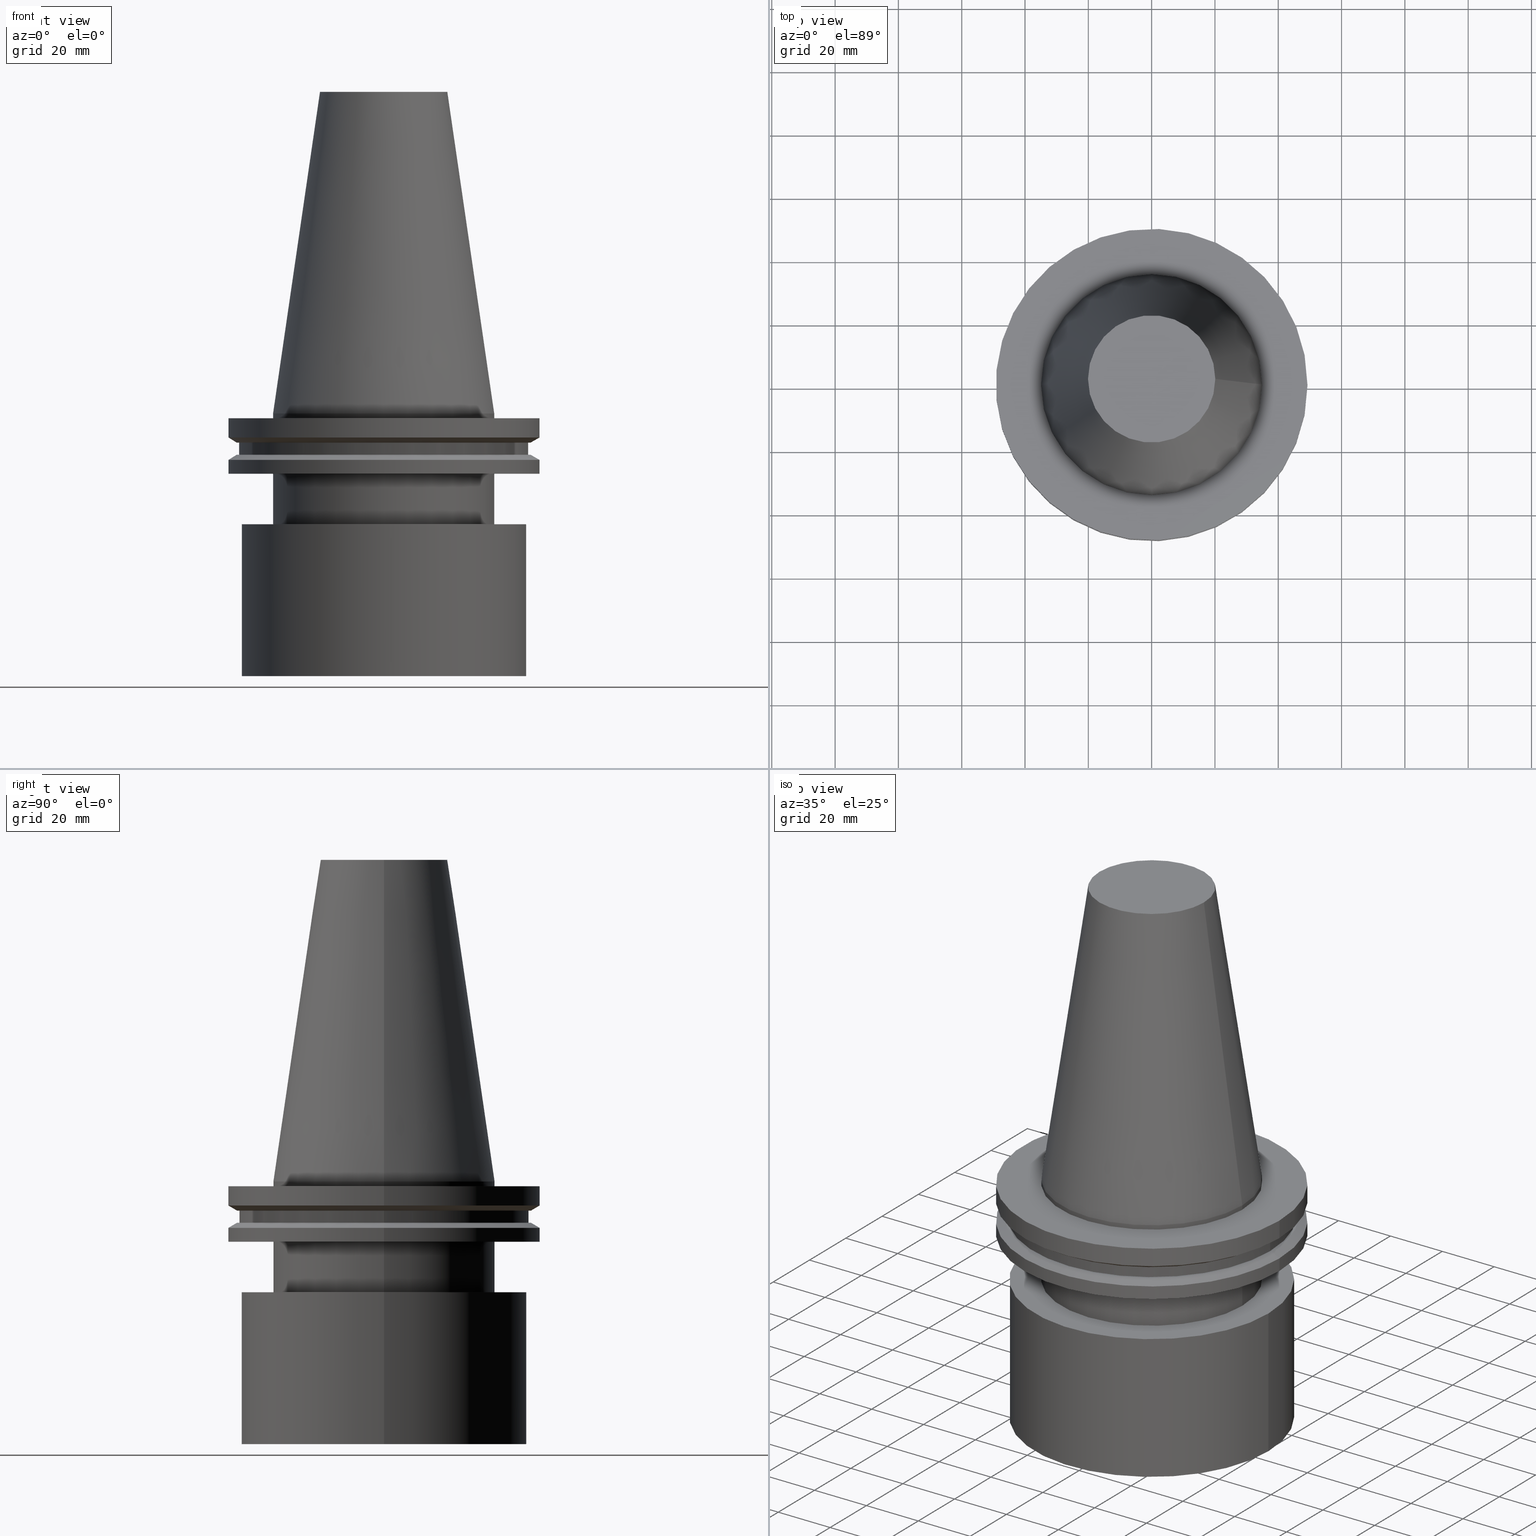
[diagram: canonical four-view strip — front | top / right | iso, engineering-drawing reading convention]
A machine part, canonical four-view strip (front | top / right | iso — engineering-drawing reading convention). The complete STEP part file that produces these views, byte-faithful:
ISO-10303-21;
HEADER;
FILE_DESCRIPTION (( 'STEP AP203' ),
    '1' );
FILE_NAME ('11.368.674.stp',
    '2022-03-09T15:23:10',
    ( '' ),
    ( '' ),
    'SwSTEP 2.0',
    'SolidWorks 2021',
    '' );
FILE_SCHEMA (( 'CONFIG_CONTROL_DESIGN' ));
ENDSEC;

DATA;
#1 = EDGE_CURVE ( 'NONE', #272, #272, #247, .T. ) ;
#2 = ORIENTED_EDGE ( 'NONE', *, *, #43, .F. ) ;
#3 = CARTESIAN_POINT ( 'NONE',  ( 0.000000000000000000, 0.000000000000000000, -14.65761014474876944 ) ) ;
#4 = ORIENTED_EDGE ( 'NONE', *, *, #393, .T. ) ;
#5 = CC_DESIGN_PERSON_AND_ORGANIZATION_ASSIGNMENT ( #252, #189, ( #390 ) ) ;
#6 = FACE_OUTER_BOUND ( 'NONE', #101, .T. ) ;
#7 = CIRCLE ( 'NONE', #134, 49.21500000000000341 ) ;
#8 = EDGE_LOOP ( 'NONE', ( #172 ) ) ;
#9 = DIRECTION ( 'NONE',  ( 1.000000000000000000, 0.000000000000000000, 0.000000000000000000 ) ) ;
#10 = ADVANCED_FACE ( 'NONE', ( #154, #388 ), #146, .T. ) ;
#11 = EDGE_LOOP ( 'NONE', ( #204 ) ) ;
#12 = DIRECTION ( 'NONE',  ( -0.000000000000000000, -0.000000000000000000, 1.000000000000000000 ) ) ;
#13 = ORIENTED_EDGE ( 'NONE', *, *, #301, .F. ) ;
#14 = DIRECTION ( 'NONE',  ( 1.000000000000000000, 0.000000000000000000, 0.000000000000000000 ) ) ;
#15 = AXIS2_PLACEMENT_3D ( 'NONE', #168, #111, #142 ) ;
#16 = FACE_OUTER_BOUND ( 'NONE', #371, .T. ) ;
#17 = DIRECTION ( 'NONE',  ( 1.000000000000000000, 0.000000000000000000, 0.000000000000000000 ) ) ;
#18 = DIRECTION ( 'NONE',  ( 1.000000000000000000, 0.000000000000000000, 0.000000000000000000 ) ) ;
#19 = AXIS2_PLACEMENT_3D ( 'NONE', #239, #87, #214 ) ;
#20 = VERTEX_POINT ( 'NONE', #22 ) ;
#21 = DIRECTION ( 'NONE',  ( -0.000000000000000000, -0.000000000000000000, 1.000000000000000000 ) ) ;
#22 = CARTESIAN_POINT ( 'NONE',  ( 49.21500000000000341, 0.000000000000000000, -7.602389855251287187 ) ) ;
#23 = AXIS2_PLACEMENT_3D ( 'NONE', #266, #132, #315 ) ;
#24 = DIRECTION ( 'NONE',  ( 1.000000000000000000, 0.000000000000000000, 0.000000000000000000 ) ) ;
#25 = VERTEX_POINT ( 'NONE', #240 ) ;
#26 = EDGE_LOOP ( 'NONE', ( #317 ) ) ;
#27 =( NAMED_UNIT ( * ) PLANE_ANGLE_UNIT ( ) SI_UNIT ( $, .RADIAN. ) );
#28 = DIRECTION ( 'NONE',  ( 0.000000000000000000, 0.000000000000000000, -1.000000000000000000 ) ) ;
#29 = SHAPE_DEFINITION_REPRESENTATION ( #158, #367 ) ;
#30 = PRODUCT ( '11.368.674', '11.368.674', '', ( #91 ) ) ;
#31 = CALENDAR_DATE ( 2022, 9, 3 ) ;
#32 = AXIS2_PLACEMENT_3D ( 'NONE', #385, #292, #124 ) ;
#33 = APPROVAL_DATE_TIME ( #305, #64 ) ;
#34 = PERSON_AND_ORGANIZATION ( #336, #273 ) ;
#35 = ORIENTED_EDGE ( 'NONE', *, *, #224, .T. ) ;
#36 = DIRECTION ( 'NONE',  ( 1.000000000000000000, 0.000000000000000000, 0.000000000000000000 ) ) ;
#37 = CC_DESIGN_DATE_AND_TIME_ASSIGNMENT ( #223, #157, ( #390 ) ) ;
#38 = ORIENTED_EDGE ( 'NONE', *, *, #155, .F. ) ;
#39 = DIRECTION ( 'NONE',  ( -0.000000000000000000, -0.000000000000000000, 1.000000000000000000 ) ) ;
#40 = ORIENTED_EDGE ( 'NONE', *, *, #393, .F. ) ;
#41 = PLANE ( 'NONE',  #120 ) ;
#42 = ORIENTED_EDGE ( 'NONE', *, *, #261, .F. ) ;
#43 = EDGE_CURVE ( 'NONE', #352, #352, #88, .T. ) ;
#44 = DIRECTION ( 'NONE',  ( 1.000000000000000000, 0.000000000000000000, 0.000000000000000000 ) ) ;
#45 = EDGE_LOOP ( 'NONE', ( #179 ) ) ;
#46 = FACE_OUTER_BOUND ( 'NONE', #350, .T. ) ;
#47 = ORIENTED_EDGE ( 'NONE', *, *, #290, .F. ) ;
#48 = CARTESIAN_POINT ( 'NONE',  ( 49.21499999999999631, 0.000000000000000000, -1.499999999999987566 ) ) ;
#49 = CARTESIAN_POINT ( 'NONE',  ( 0.000000000000000000, 0.000000000000000000, -19.04999999999999716 ) ) ;
#50 = CARTESIAN_POINT ( 'NONE',  ( 20.10819343178871321, 0.000000000000000000, 101.5999999999999801 ) ) ;
#51 = FACE_OUTER_BOUND ( 'NONE', #169, .T. ) ;
#52 = AXIS2_PLACEMENT_3D ( 'NONE', #126, #360, #93 ) ;
#53 = CARTESIAN_POINT ( 'NONE',  ( 0.000000000000000000, 0.000000000000000000, 0.000000000000000000 ) ) ;
#54 = DIRECTION ( 'NONE',  ( 1.000000000000000000, 0.000000000000000000, 0.000000000000000000 ) ) ;
#55 = VERTEX_POINT ( 'NONE', #148 ) ;
#56 = DIRECTION ( 'NONE',  ( 0.000000000000000000, -0.000000000000000000, 1.000000000000000000 ) ) ;
#57 = CARTESIAN_POINT ( 'NONE',  ( 45.00000000000000000, 0.000000000000000000, -83.00000000000001421 ) ) ;
#58 = EDGE_CURVE ( 'NONE', #270, #270, #394, .T. ) ;
#59 = DATE_AND_TIME ( #391, #246 ) ;
#60 = EDGE_CURVE ( 'NONE', #303, #303, #159, .T. ) ;
#61 = AXIS2_PLACEMENT_3D ( 'NONE', #378, #234, #299 ) ;
#62 = APPROVAL_ROLE ( '' ) ;
#63 = PERSON_AND_ORGANIZATION ( #336, #273 ) ;
#64 = APPROVAL ( #236, 'UNSPECIFIED' ) ;
#65 = COORDINATED_UNIVERSAL_TIME_OFFSET ( 6, 0, .BEHIND. ) ;
#66 = EDGE_CURVE ( 'NONE', #185, #185, #201, .T. ) ;
#67 = CC_DESIGN_APPROVAL ( #318, ( #316 ) ) ;
#68 = FACE_OUTER_BOUND ( 'NONE', #115, .T. ) ;
#69 = EDGE_LOOP ( 'NONE', ( #198 ) ) ;
#70 = AXIS2_PLACEMENT_3D ( 'NONE', #116, #39, #44 ) ;
#71 = DIRECTION ( 'NONE',  ( -0.000000000000000000, -0.000000000000000000, 1.000000000000000000 ) ) ;
#72 = CIRCLE ( 'NONE', #281, 34.92499999999999716 ) ;
#73 = ADVANCED_FACE ( 'NONE', ( #16 ), #379, .F. ) ;
#74 = ORIENTED_EDGE ( 'NONE', *, *, #66, .F. ) ;
#75 = FACE_OUTER_BOUND ( 'NONE', #11, .T. ) ;
#76 = EDGE_LOOP ( 'NONE', ( #368 ) ) ;
#77 = FACE_BOUND ( 'NONE', #377, .T. ) ;
#78 = EDGE_LOOP ( 'NONE', ( #74 ) ) ;
#79 = DIRECTION ( 'NONE',  ( -1.000000000000000000, 0.000000000000000000, -0.000000000000000000 ) ) ;
#80 = ORIENTED_EDGE ( 'NONE', *, *, #1, .F. ) ;
#81 = PERSON_AND_ORGANIZATION ( #336, #273 ) ;
#82 = EDGE_CURVE ( 'NONE', #123, #123, #260, .T. ) ;
#83 = DIRECTION ( 'NONE',  ( -0.000000000000000000, -0.000000000000000000, 1.000000000000000000 ) ) ;
#84 = CARTESIAN_POINT ( 'NONE',  ( 46.43919780457007818, 0.000000000000000000, -9.204999999999991189 ) ) ;
#85 = DIRECTION ( 'NONE',  ( -0.000000000000000000, -0.000000000000000000, 1.000000000000000000 ) ) ;
#86 = VERTEX_POINT ( 'NONE', #48 ) ;
#87 = DIRECTION ( 'NONE',  ( -0.000000000000000000, -0.000000000000000000, 1.000000000000000000 ) ) ;
#88 = CIRCLE ( 'NONE', #344, 34.92499999999999716 ) ;
#89 = VERTEX_POINT ( 'NONE', #50 ) ;
#90 = EDGE_LOOP ( 'NONE', ( #80 ) ) ;
#91 = MECHANICAL_CONTEXT ( 'NONE', #100, 'mechanical' ) ;
#92 =( GEOMETRIC_REPRESENTATION_CONTEXT ( 3 ) GLOBAL_UNCERTAINTY_ASSIGNED_CONTEXT ( ( #97 ) ) GLOBAL_UNIT_ASSIGNED_CONTEXT ( ( #150, #27, #119 ) ) REPRESENTATION_CONTEXT ( 'NONE', 'WORKASPACE' ) );
#93 = DIRECTION ( 'NONE',  ( 1.000000000000000000, 0.000000000000000000, 0.000000000000000000 ) ) ;
#94 = DESIGN_CONTEXT ( 'detailed design', #110, 'design' ) ;
#95 = COORDINATED_UNIVERSAL_TIME_OFFSET ( 6, 0, .BEHIND. ) ;
#96 = AXIS2_PLACEMENT_3D ( 'NONE', #3, #12, #345 ) ;
#97 = UNCERTAINTY_MEASURE_WITH_UNIT (LENGTH_MEASURE( 1.000000000000000082E-05 ), #150, 'distance_accuracy_value', 'NONE');
#98 = LOCAL_TIME ( 9, 23, 10.00000000000000000, #245 ) ;
#99 = DATE_AND_TIME ( #339, #309 ) ;
#100 = APPLICATION_CONTEXT ( 'configuration controlled 3d designs of mechanical parts and assemblies' ) ;
#101 = EDGE_LOOP ( 'NONE', ( #284 ) ) ;
#102 = AXIS2_PLACEMENT_3D ( 'NONE', #372, #319, #289 ) ;
#103 = FACE_BOUND ( 'NONE', #133, .T. ) ;
#104 = ORIENTED_EDGE ( 'NONE', *, *, #43, .T. ) ;
#105 = CIRCLE ( 'NONE', #166, 45.00000000000000000 ) ;
#106 = FACE_OUTER_BOUND ( 'NONE', #26, .T. ) ;
#107 = EDGE_CURVE ( 'NONE', #25, #25, #72, .T. ) ;
#108 = AXIS2_PLACEMENT_3D ( 'NONE', #323, #269, #117 ) ;
#109 = EDGE_LOOP ( 'NONE', ( #2 ) ) ;
#110 = APPLICATION_CONTEXT ( 'configuration controlled 3d designs of mechanical parts and assemblies' ) ;
#111 = DIRECTION ( 'NONE',  ( 0.000000000000000000, -0.000000000000000000, 1.000000000000000000 ) ) ;
#112 = CC_DESIGN_PERSON_AND_ORGANIZATION_ASSIGNMENT ( #34, #191, ( #316 ) ) ;
#113 = EDGE_LOOP ( 'NONE', ( #282 ) ) ;
#114 = CARTESIAN_POINT ( 'NONE',  ( 0.000000000000000000, 0.000000000000000000, -13.05499999999999794 ) ) ;
#115 = EDGE_LOOP ( 'NONE', ( #314 ) ) ;
#116 = CARTESIAN_POINT ( 'NONE',  ( 0.000000000000000000, 0.000000000000000000, 101.5999999999999943 ) ) ;
#117 = DIRECTION ( 'NONE',  ( -1.000000000000000000, 0.000000000000000000, -0.000000000000000000 ) ) ;
#118 = CYLINDRICAL_SURFACE ( 'NONE', #278, 45.64500000000000313 ) ;
#119 =( NAMED_UNIT ( * ) SI_UNIT ( $, .STERADIAN. ) SOLID_ANGLE_UNIT ( ) );
#120 = AXIS2_PLACEMENT_3D ( 'NONE', #140, #171, #227 ) ;
#121 = DIRECTION ( 'NONE',  ( 1.000000000000000000, 0.000000000000000000, 0.000000000000000000 ) ) ;
#122 = DIRECTION ( 'NONE',  ( 1.000000000000000000, 0.000000000000000000, 0.000000000000000000 ) ) ;
#123 = VERTEX_POINT ( 'NONE', #332 ) ;
#124 = DIRECTION ( 'NONE',  ( 1.000000000000000000, 0.000000000000000000, 0.000000000000000000 ) ) ;
#125 = APPROVAL_DATE_TIME ( #366, #308 ) ;
#126 = CARTESIAN_POINT ( 'NONE',  ( 0.000000000000000000, 0.000000000000000000, -9.204999999999991189 ) ) ;
#127 = AXIS2_PLACEMENT_3D ( 'NONE', #351, #83, #271 ) ;
#128 = PERSON_AND_ORGANIZATION_ROLE ( 'creator' ) ;
#129 = CLOSED_SHELL ( 'NONE', ( #249, #268, #216, #331, #196, #186, #147, #151, #192, #183, #231, #322, #180, #387, #10, #73 ) ) ;
#130 = PERSON_AND_ORGANIZATION ( #336, #273 ) ;
#131 = ORIENTED_EDGE ( 'NONE', *, *, #66, .T. ) ;
#132 = DIRECTION ( 'NONE',  ( -0.000000000000000000, -0.000000000000000000, 1.000000000000000000 ) ) ;
#133 = EDGE_LOOP ( 'NONE', ( #346 ) ) ;
#134 = AXIS2_PLACEMENT_3D ( 'NONE', #283, #203, #263 ) ;
#135 = FACE_OUTER_BOUND ( 'NONE', #141, .T. ) ;
#136 = EDGE_LOOP ( 'NONE', ( #320 ) ) ;
#137 = CARTESIAN_POINT ( 'NONE',  ( 0.000000000000000000, 49.21499999999999631, -1.499999999999992895 ) ) ;
#138 = CIRCLE ( 'NONE', #96, 49.21499999999998920 ) ;
#139 = EDGE_LOOP ( 'NONE', ( #254 ) ) ;
#140 = CARTESIAN_POINT ( 'NONE',  ( 0.000000000000000000, 20.10819343178871321, 101.5999999999999943 ) ) ;
#141 = EDGE_LOOP ( 'NONE', ( #4 ) ) ;
#142 = DIRECTION ( 'NONE',  ( 1.000000000000000000, 0.000000000000000000, 0.000000000000000000 ) ) ;
#143 = CARTESIAN_POINT ( 'NONE',  ( 0.000000000000000000, 0.000000000000000000, -35.00000000000000000 ) ) ;
#144 = CARTESIAN_POINT ( 'NONE',  ( 49.21499999999998920, 0.000000000000000000, -14.65761014474876944 ) ) ;
#145 = AXIS2_PLACEMENT_3D ( 'NONE', #244, #21, #212 ) ;
#146 = CYLINDRICAL_SURFACE ( 'NONE', #392, 45.00000000000000000 ) ;
#147 = ADVANCED_FACE ( 'NONE', ( #184, #267 ), #381, .F. ) ;
#148 = CARTESIAN_POINT ( 'NONE',  ( 34.92499999999999005, 0.000000000000000000, 0.000000000000000000 ) ) ;
#149 = CARTESIAN_POINT ( 'NONE',  ( 0.000000000000000000, 0.000000000000000000, 101.5999999999999943 ) ) ;
#150 =( LENGTH_UNIT ( ) NAMED_UNIT ( * ) SI_UNIT ( .MILLI., .METRE. ) );
#151 = ADVANCED_FACE ( 'NONE', ( #175, #242 ), #118, .T. ) ;
#152 = APPROVAL_PERSON_ORGANIZATION ( #306, #308, #193 ) ;
#153 = DIRECTION ( 'NONE',  ( -0.000000000000000000, -0.000000000000000000, 1.000000000000000000 ) ) ;
#154 = FACE_OUTER_BOUND ( 'NONE', #262, .T. ) ;
#155 = EDGE_CURVE ( 'NONE', #380, #380, #105, .T. ) ;
#156 = DIRECTION ( 'NONE',  ( -1.000000000000000000, 0.000000000000000000, 0.000000000000000000 ) ) ;
#157 = DATE_TIME_ROLE ( 'classification_date' ) ;
#158 = PRODUCT_DEFINITION_SHAPE ( 'NONE', 'NONE',  #241 ) ;
#159 = CIRCLE ( 'NONE', #226, 45.00000000000000000 ) ;
#160 = CALENDAR_DATE ( 2022, 9, 3 ) ;
#161 = AXIS2_PLACEMENT_3D ( 'NONE', #257, #374, #14 ) ;
#162 = PERSON_AND_ORGANIZATION ( #336, #273 ) ;
#163 = EDGE_CURVE ( 'NONE', #86, #86, #297, .T. ) ;
#164 = EDGE_LOOP ( 'NONE', ( #104 ) ) ;
#165 = CYLINDRICAL_SURFACE ( 'NONE', #70, 49.21499999999999631 ) ;
#166 = AXIS2_PLACEMENT_3D ( 'NONE', #237, #353, #328 ) ;
#167 = ORIENTED_EDGE ( 'NONE', *, *, #253, .F. ) ;
#168 = CARTESIAN_POINT ( 'NONE',  ( 0.000000000000000000, 49.21499999999998920, -19.04999999999999716 ) ) ;
#169 = EDGE_LOOP ( 'NONE', ( #40 ) ) ;
#170 = CC_DESIGN_APPROVAL ( #64, ( #241 ) ) ;
#171 = DIRECTION ( 'NONE',  ( 0.000000000000000000, 0.000000000000000000, -1.000000000000000000 ) ) ;
#172 = ORIENTED_EDGE ( 'NONE', *, *, #224, .F. ) ;
#173 = PLANE ( 'NONE',  #220 ) ;
#174 = PLANE ( 'NONE',  #61 ) ;
#175 = FACE_OUTER_BOUND ( 'NONE', #90, .T. ) ;
#176 = PERSON_AND_ORGANIZATION ( #336, #273 ) ;
#177 = DIRECTION ( 'NONE',  ( 1.000000000000000000, 0.000000000000000000, 0.000000000000000000 ) ) ;
#178 = AXIS2_PLACEMENT_3D ( 'NONE', #215, #300, #181 ) ;
#179 = ORIENTED_EDGE ( 'NONE', *, *, #253, .T. ) ;
#180 = ADVANCED_FACE ( 'NONE', ( #51, #355 ), #383, .T. ) ;
#181 = DIRECTION ( 'NONE',  ( 1.000000000000000000, 0.000000000000000000, 0.000000000000000000 ) ) ;
#182 = CARTESIAN_POINT ( 'NONE',  ( 45.64500000000000313, 0.000000000000000000, -13.05499999999999794 ) ) ;
#183 = ADVANCED_FACE ( 'NONE', ( #335, #304 ), #228, .T. ) ;
#184 = FACE_BOUND ( 'NONE', #275, .T. ) ;
#185 = VERTEX_POINT ( 'NONE', #84 ) ;
#186 = ADVANCED_FACE ( 'NONE', ( #187, #218 ), #330, .T. ) ;
#187 = FACE_BOUND ( 'NONE', #265, .T. ) ;
#188 = DATE_TIME_ROLE ( 'creation_date' ) ;
#189 = PERSON_AND_ORGANIZATION_ROLE ( 'classification_officer' ) ;
#190 = AXIS2_PLACEMENT_3D ( 'NONE', #114, #225, #255 ) ;
#191 = PERSON_AND_ORGANIZATION_ROLE ( 'creator' ) ;
#192 = ADVANCED_FACE ( 'NONE', ( #389, #77 ), #173, .F. ) ;
#193 = APPROVAL_ROLE ( '' ) ;
#194 = AXIS2_PLACEMENT_3D ( 'NONE', #326, #56, #122 ) ;
#195 = COORDINATED_UNIVERSAL_TIME_OFFSET ( 6, 0, .BEHIND. ) ;
#196 = ADVANCED_FACE ( 'NONE', ( #369, #68 ), #287, .T. ) ;
#197 = CIRCLE ( 'NONE', #190, 46.43919780457007818 ) ;
#198 = ORIENTED_EDGE ( 'NONE', *, *, #58, .F. ) ;
#199 = DIRECTION ( 'NONE',  ( -0.000000000000000000, -0.000000000000000000, 1.000000000000000000 ) ) ;
#200 = FACE_OUTER_BOUND ( 'NONE', #109, .T. ) ;
#201 = CIRCLE ( 'NONE', #145, 46.43919780457007818 ) ;
#202 = ORIENTED_EDGE ( 'NONE', *, *, #1, .T. ) ;
#203 = DIRECTION ( 'NONE',  ( -0.000000000000000000, -0.000000000000000000, 1.000000000000000000 ) ) ;
#204 = ORIENTED_EDGE ( 'NONE', *, *, #163, .F. ) ;
#205 = FACE_OUTER_BOUND ( 'NONE', #45, .T. ) ;
#206 = ORIENTED_EDGE ( 'NONE', *, *, #301, .T. ) ;
#207 = FACE_BOUND ( 'NONE', #164, .T. ) ;
#208 = CARTESIAN_POINT ( 'NONE',  ( 0.000000000000000000, 0.000000000000000000, -35.00000000000000000 ) ) ;
#209 = PERSON_AND_ORGANIZATION_ROLE ( 'design_owner' ) ;
#210 = VERTEX_POINT ( 'NONE', #327 ) ;
#211 = CC_DESIGN_APPROVAL ( #308, ( #390 ) ) ;
#212 = DIRECTION ( 'NONE',  ( 1.000000000000000000, 0.000000000000000000, 0.000000000000000000 ) ) ;
#213 = CARTESIAN_POINT ( 'NONE',  ( 45.00000000000000000, 0.000000000000000000, -35.00000000000000000 ) ) ;
#214 = DIRECTION ( 'NONE',  ( 1.000000000000000000, 0.000000000000000000, 0.000000000000000000 ) ) ;
#215 = CARTESIAN_POINT ( 'NONE',  ( 0.000000000000000000, 0.000000000000000000, -9.204999999999991189 ) ) ;
#216 = ADVANCED_FACE ( 'NONE', ( #200, #6 ), #288, .T. ) ;
#217 = DIRECTION ( 'NONE',  ( -0.000000000000000000, -0.000000000000000000, 1.000000000000000000 ) ) ;
#218 = FACE_OUTER_BOUND ( 'NONE', #286, .T. ) ;
#219 = APPROVAL_STATUS ( 'not_yet_approved' ) ;
#220 = AXIS2_PLACEMENT_3D ( 'NONE', #343, #230, #311 ) ;
#221 = APPROVAL_STATUS ( 'not_yet_approved' ) ;
#222 = APPROVAL_PERSON_ORGANIZATION ( #130, #318, #362 ) ;
#223 = DATE_AND_TIME ( #31, #98 ) ;
#224 = EDGE_CURVE ( 'NONE', #359, #359, #138, .T. ) ;
#225 = DIRECTION ( 'NONE',  ( -0.000000000000000000, -0.000000000000000000, 1.000000000000000000 ) ) ;
#226 = AXIS2_PLACEMENT_3D ( 'NONE', #143, #85, #54 ) ;
#227 = DIRECTION ( 'NONE',  ( -1.000000000000000000, 0.000000000000000000, -0.000000000000000000 ) ) ;
#228 = CONICAL_SURFACE ( 'NONE', #52, 46.43919780457007818, 1.047197551196575205 ) ;
#229 = ORIENTED_EDGE ( 'NONE', *, *, #155, .T. ) ;
#230 = DIRECTION ( 'NONE',  ( 0.000000000000000000, -0.000000000000000000, 1.000000000000000000 ) ) ;
#231 = ADVANCED_FACE ( 'NONE', ( #75, #205 ), #165, .T. ) ;
#232 = EDGE_LOOP ( 'NONE', ( #131 ) ) ;
#233 = FACE_BOUND ( 'NONE', #69, .T. ) ;
#234 = DIRECTION ( 'NONE',  ( 0.000000000000000000, 0.000000000000000000, -1.000000000000000000 ) ) ;
#235 = DIRECTION ( 'NONE',  ( -0.000000000000000000, -0.000000000000000000, 1.000000000000000000 ) ) ;
#236 = APPROVAL_STATUS ( 'not_yet_approved' ) ;
#237 = CARTESIAN_POINT ( 'NONE',  ( 0.000000000000000000, 0.000000000000000000, -83.00000000000001421 ) ) ;
#238 = AXIS2_PLACEMENT_3D ( 'NONE', #137, #259, #79 ) ;
#239 = CARTESIAN_POINT ( 'NONE',  ( 0.000000000000000000, 0.000000000000000000, 101.5999999999999943 ) ) ;
#240 = CARTESIAN_POINT ( 'NONE',  ( 34.92499999999999716, 0.000000000000000000, -35.00000000000000000 ) ) ;
#241 = PRODUCT_DEFINITION ( 'UNKNOWN', '', #316, #94 ) ;
#242 = FACE_OUTER_BOUND ( 'NONE', #136, .T. ) ;
#243 = CARTESIAN_POINT ( 'NONE',  ( 45.64500000000000313, 0.000000000000000000, -9.204999999999991189 ) ) ;
#244 = CARTESIAN_POINT ( 'NONE',  ( 0.000000000000000000, 0.000000000000000000, -9.204999999999991189 ) ) ;
#245 = COORDINATED_UNIVERSAL_TIME_OFFSET ( 6, 0, .BEHIND. ) ;
#246 = LOCAL_TIME ( 9, 23, 10.00000000000000000, #340 ) ;
#247 = CIRCLE ( 'NONE', #178, 45.64500000000000313 ) ;
#248 = MANIFOLD_SOLID_BREP ( 'CKB', #129 ) ;
#249 = ADVANCED_FACE ( 'NONE', ( #285, #135 ), #307, .T. ) ;
#250 = PERSON_AND_ORGANIZATION_ROLE ( 'design_supplier' ) ;
#251 = AXIS2_PLACEMENT_3D ( 'NONE', #354, #217, #17 ) ;
#252 = PERSON_AND_ORGANIZATION ( #336, #273 ) ;
#253 = EDGE_CURVE ( 'NONE', #20, #20, #7, .T. ) ;
#254 = ORIENTED_EDGE ( 'NONE', *, *, #82, .F. ) ;
#255 = DIRECTION ( 'NONE',  ( 1.000000000000000000, 0.000000000000000000, 0.000000000000000000 ) ) ;
#256 = EDGE_LOOP ( 'NONE', ( #206 ) ) ;
#257 = CARTESIAN_POINT ( 'NONE',  ( 0.000000000000000000, 0.000000000000000000, 101.5999999999999943 ) ) ;
#258 = CC_DESIGN_PERSON_AND_ORGANIZATION_ASSIGNMENT ( #81, #209, ( #30 ) ) ;
#259 = DIRECTION ( 'NONE',  ( 0.000000000000000000, 0.000000000000000000, -1.000000000000000000 ) ) ;
#260 = CIRCLE ( 'NONE', #279, 49.21499999999998920 ) ;
#261 = EDGE_CURVE ( 'NONE', #89, #89, #361, .T. ) ;
#262 = EDGE_LOOP ( 'NONE', ( #348 ) ) ;
#263 = DIRECTION ( 'NONE',  ( 1.000000000000000000, 0.000000000000000000, 0.000000000000000000 ) ) ;
#264 = AXIS2_PLACEMENT_3D ( 'NONE', #376, #71, #9 ) ;
#265 = EDGE_LOOP ( 'NONE', ( #13 ) ) ;
#266 = CARTESIAN_POINT ( 'NONE',  ( 0.000000000000000000, 0.000000000000000000, 101.5999999999999801 ) ) ;
#267 = FACE_OUTER_BOUND ( 'NONE', #256, .T. ) ;
#268 = ADVANCED_FACE ( 'NONE', ( #106 ), #41, .F. ) ;
#269 = DIRECTION ( 'NONE',  ( 0.000000000000000000, 0.000000000000000000, -1.000000000000000000 ) ) ;
#270 = VERTEX_POINT ( 'NONE', #356 ) ;
#271 = DIRECTION ( 'NONE',  ( 1.000000000000000000, 0.000000000000000000, 0.000000000000000000 ) ) ;
#272 = VERTEX_POINT ( 'NONE', #243 ) ;
#273 = ORGANIZATION ( 'UNSPECIFIED', 'UNSPECIFIED', '' ) ;
#274 = DIRECTION ( 'NONE',  ( -0.000000000000000000, -0.000000000000000000, 1.000000000000000000 ) ) ;
#275 = EDGE_LOOP ( 'NONE', ( #47 ) ) ;
#276 = DIRECTION ( 'NONE',  ( 1.000000000000000000, 0.000000000000000000, 0.000000000000000000 ) ) ;
#277 = CARTESIAN_POINT ( 'NONE',  ( 0.000000000000000000, 0.000000000000000000, -14.65761014474876944 ) ) ;
#278 = AXIS2_PLACEMENT_3D ( 'NONE', #149, #235, #121 ) ;
#279 = AXIS2_PLACEMENT_3D ( 'NONE', #294, #153, #177 ) ;
#280 = APPROVAL_DATE_TIME ( #99, #318 ) ;
#281 = AXIS2_PLACEMENT_3D ( 'NONE', #208, #274, #18 ) ;
#282 = ORIENTED_EDGE ( 'NONE', *, *, #58, .T. ) ;
#283 = CARTESIAN_POINT ( 'NONE',  ( 0.000000000000000000, 0.000000000000000000, -7.602389855251287187 ) ) ;
#284 = ORIENTED_EDGE ( 'NONE', *, *, #107, .T. ) ;
#285 = FACE_BOUND ( 'NONE', #310, .T. ) ;
#286 = EDGE_LOOP ( 'NONE', ( #35 ) ) ;
#287 = CYLINDRICAL_SURFACE ( 'NONE', #161, 49.21499999999998920 ) ;
#288 = CYLINDRICAL_SURFACE ( 'NONE', #357, 34.92499999999999716 ) ;
#289 = DIRECTION ( 'NONE',  ( -1.000000000000000000, 0.000000000000000000, 0.000000000000000000 ) ) ;
#290 = EDGE_CURVE ( 'NONE', #329, #329, #382, .T. ) ;
#291 = CIRCLE ( 'NONE', #251, 34.92499999999999005 ) ;
#292 = DIRECTION ( 'NONE',  ( -0.000000000000000000, -0.000000000000000000, 1.000000000000000000 ) ) ;
#293 = PRODUCT_RELATED_PRODUCT_CATEGORY ( 'detail', '', ( #30 ) ) ;
#294 = CARTESIAN_POINT ( 'NONE',  ( 0.000000000000000000, 0.000000000000000000, -19.04999999999999716 ) ) ;
#295 = AXIS2_PLACEMENT_3D ( 'NONE', #277, #28, #156 ) ;
#296 = CARTESIAN_POINT ( 'NONE',  ( 34.92499999999999716, 0.000000000000000000, -19.04999999999999716 ) ) ;
#297 = CIRCLE ( 'NONE', #127, 49.21499999999999631 ) ;
#298 = CARTESIAN_POINT ( 'NONE',  ( 0.000000000000000000, 0.000000000000000000, 0.000000000000000000 ) ) ;
#299 = DIRECTION ( 'NONE',  ( -1.000000000000000000, 0.000000000000000000, -0.000000000000000000 ) ) ;
#300 = DIRECTION ( 'NONE',  ( -0.000000000000000000, -0.000000000000000000, 1.000000000000000000 ) ) ;
#301 = EDGE_CURVE ( 'NONE', #210, #210, #197, .T. ) ;
#302 = DIRECTION ( 'NONE',  ( -0.000000000000000000, -0.000000000000000000, 1.000000000000000000 ) ) ;
#303 = VERTEX_POINT ( 'NONE', #213 ) ;
#304 = FACE_BOUND ( 'NONE', #232, .T. ) ;
#305 = DATE_AND_TIME ( #160, #325 ) ;
#306 = PERSON_AND_ORGANIZATION ( #336, #273 ) ;
#307 = CONICAL_SURFACE ( 'NONE', #102, 34.92499999999999005, 0.1448138465474119452 ) ;
#308 = APPROVAL ( #219, 'UNSPECIFIED' ) ;
#309 = LOCAL_TIME ( 9, 23, 10.00000000000000000, #95 ) ;
#310 = EDGE_LOOP ( 'NONE', ( #42 ) ) ;
#311 = DIRECTION ( 'NONE',  ( 1.000000000000000000, 0.000000000000000000, 0.000000000000000000 ) ) ;
#312 = ORIENTED_EDGE ( 'NONE', *, *, #60, .T. ) ;
#313 = CARTESIAN_POINT ( 'NONE',  ( 0.000000000000000000, 0.000000000000000000, 101.5999999999999943 ) ) ;
#314 = ORIENTED_EDGE ( 'NONE', *, *, #82, .T. ) ;
#315 = DIRECTION ( 'NONE',  ( 1.000000000000000000, 0.000000000000000000, 0.000000000000000000 ) ) ;
#316 = PRODUCT_DEFINITION_FORMATION_WITH_SPECIFIED_SOURCE ( 'ANY', '', #30, .NOT_KNOWN. ) ;
#317 = ORIENTED_EDGE ( 'NONE', *, *, #261, .T. ) ;
#318 = APPROVAL ( #221, 'UNSPECIFIED' ) ;
#319 = DIRECTION ( 'NONE',  ( 0.000000000000000000, 0.000000000000000000, -1.000000000000000000 ) ) ;
#320 = ORIENTED_EDGE ( 'NONE', *, *, #290, .T. ) ;
#321 = PLANE ( 'NONE',  #15 ) ;
#322 = ADVANCED_FACE ( 'NONE', ( #233, #341 ), #349, .F. ) ;
#323 = CARTESIAN_POINT ( 'NONE',  ( 0.000000000000000000, 45.64500000000000313, -13.05499999999999794 ) ) ;
#324 = APPLICATION_PROTOCOL_DEFINITION ( 'international standard', 'config_control_design', 1994, #110 ) ;
#325 = LOCAL_TIME ( 9, 23, 10.00000000000000000, #195 ) ;
#326 = CARTESIAN_POINT ( 'NONE',  ( 0.000000000000000000, 45.00000000000000000, -83.00000000000001421 ) ) ;
#327 = CARTESIAN_POINT ( 'NONE',  ( 46.43919780457007818, 0.000000000000000000, -13.05499999999999794 ) ) ;
#328 = DIRECTION ( 'NONE',  ( 1.000000000000000000, 0.000000000000000000, 0.000000000000000000 ) ) ;
#329 = VERTEX_POINT ( 'NONE', #182 ) ;
#330 = CONICAL_SURFACE ( 'NONE', #295, 49.21499999999998920, 1.047197551196554333 ) ;
#331 = ADVANCED_FACE ( 'NONE', ( #347, #207 ), #321, .F. ) ;
#332 = CARTESIAN_POINT ( 'NONE',  ( 49.21499999999998920, 0.000000000000000000, -19.04999999999999716 ) ) ;
#333 = DIRECTION ( 'NONE',  ( -0.000000000000000000, -0.000000000000000000, 1.000000000000000000 ) ) ;
#334 = APPLICATION_PROTOCOL_DEFINITION ( 'international standard', 'config_control_design', 1994, #100 ) ;
#335 = FACE_OUTER_BOUND ( 'NONE', #375, .T. ) ;
#336 = PERSON ( 'UNSPECIFIED', 'UNSPECIFIED', 'UNSPECIFIED', ('UNSPECIFIED'), ('UNSPECIFIED'), ('UNSPECIFIED') ) ;
#337 = SECURITY_CLASSIFICATION_LEVEL ( 'unclassified' ) ;
#338 = APPROVAL_PERSON_ORGANIZATION ( #176, #64, #62 ) ;
#339 = CALENDAR_DATE ( 2022, 9, 3 ) ;
#340 = COORDINATED_UNIVERSAL_TIME_OFFSET ( 6, 0, .BEHIND. ) ;
#341 = FACE_OUTER_BOUND ( 'NONE', #76, .T. ) ;
#342 = AXIS2_PLACEMENT_3D ( 'NONE', #53, #386, #276 ) ;
#343 = CARTESIAN_POINT ( 'NONE',  ( 0.000000000000000000, 46.43919780457007818, -9.204999999999998295 ) ) ;
#344 = AXIS2_PLACEMENT_3D ( 'NONE', #49, #333, #24 ) ;
#345 = DIRECTION ( 'NONE',  ( 1.000000000000000000, 0.000000000000000000, 0.000000000000000000 ) ) ;
#346 = ORIENTED_EDGE ( 'NONE', *, *, #107, .F. ) ;
#347 = FACE_OUTER_BOUND ( 'NONE', #139, .T. ) ;
#348 = ORIENTED_EDGE ( 'NONE', *, *, #60, .F. ) ;
#349 = PLANE ( 'NONE',  #238 ) ;
#350 = EDGE_LOOP ( 'NONE', ( #312 ) ) ;
#351 = CARTESIAN_POINT ( 'NONE',  ( 0.000000000000000000, 0.000000000000000000, -1.499999999999987566 ) ) ;
#352 = VERTEX_POINT ( 'NONE', #296 ) ;
#353 = DIRECTION ( 'NONE',  ( -0.000000000000000000, -0.000000000000000000, 1.000000000000000000 ) ) ;
#354 = CARTESIAN_POINT ( 'NONE',  ( 0.000000000000000000, 0.000000000000000000, 0.000000000000000000 ) ) ;
#355 = FACE_OUTER_BOUND ( 'NONE', #113, .T. ) ;
#356 = CARTESIAN_POINT ( 'NONE',  ( 34.92499999999999005, 0.000000000000000000, -1.499999999999987566 ) ) ;
#357 = AXIS2_PLACEMENT_3D ( 'NONE', #313, #199, #36 ) ;
#358 = DIRECTION ( 'NONE',  ( 1.000000000000000000, 0.000000000000000000, 0.000000000000000000 ) ) ;
#359 = VERTEX_POINT ( 'NONE', #144 ) ;
#360 = DIRECTION ( 'NONE',  ( -0.000000000000000000, -0.000000000000000000, 1.000000000000000000 ) ) ;
#361 = CIRCLE ( 'NONE', #23, 20.10819343178871321 ) ;
#362 = APPROVAL_ROLE ( '' ) ;
#363 = CC_DESIGN_PERSON_AND_ORGANIZATION_ASSIGNMENT ( #162, #128, ( #241 ) ) ;
#364 = CC_DESIGN_SECURITY_CLASSIFICATION ( #390, ( #316 ) ) ;
#365 = CC_DESIGN_PERSON_AND_ORGANIZATION_ASSIGNMENT ( #63, #250, ( #316 ) ) ;
#366 = DATE_AND_TIME ( #395, #370 ) ;
#367 = ADVANCED_BREP_SHAPE_REPRESENTATION ( '11.368.674', ( #248, #342 ), #92 ) ;
#368 = ORIENTED_EDGE ( 'NONE', *, *, #163, .T. ) ;
#369 = FACE_OUTER_BOUND ( 'NONE', #8, .T. ) ;
#370 = LOCAL_TIME ( 9, 23, 10.00000000000000000, #65 ) ;
#371 = EDGE_LOOP ( 'NONE', ( #38 ) ) ;
#372 = CARTESIAN_POINT ( 'NONE',  ( 0.000000000000000000, 0.000000000000000000, 0.000000000000000000 ) ) ;
#373 = EDGE_LOOP ( 'NONE', ( #229 ) ) ;
#374 = DIRECTION ( 'NONE',  ( -0.000000000000000000, -0.000000000000000000, 1.000000000000000000 ) ) ;
#375 = EDGE_LOOP ( 'NONE', ( #167 ) ) ;
#376 = CARTESIAN_POINT ( 'NONE',  ( 0.000000000000000000, 0.000000000000000000, -13.05499999999999794 ) ) ;
#377 = EDGE_LOOP ( 'NONE', ( #202 ) ) ;
#378 = CARTESIAN_POINT ( 'NONE',  ( 0.000000000000000000, 0.000000000000000000, -35.00000000000000000 ) ) ;
#379 = PLANE ( 'NONE',  #194 ) ;
#380 = VERTEX_POINT ( 'NONE', #57 ) ;
#381 = PLANE ( 'NONE',  #108 ) ;
#382 = CIRCLE ( 'NONE', #264, 45.64500000000000313 ) ;
#383 = CYLINDRICAL_SURFACE ( 'NONE', #19, 34.92499999999999005 ) ;
#384 = CC_DESIGN_DATE_AND_TIME_ASSIGNMENT ( #59, #188, ( #241 ) ) ;
#385 = CARTESIAN_POINT ( 'NONE',  ( 0.000000000000000000, 0.000000000000000000, -1.499999999999987566 ) ) ;
#386 = DIRECTION ( 'NONE',  ( 0.000000000000000000, 0.000000000000000000, 1.000000000000000000 ) ) ;
#387 = ADVANCED_FACE ( 'NONE', ( #103, #46 ), #174, .F. ) ;
#388 = FACE_OUTER_BOUND ( 'NONE', #373, .T. ) ;
#389 = FACE_OUTER_BOUND ( 'NONE', #78, .T. ) ;
#390 = SECURITY_CLASSIFICATION ( '', '', #337 ) ;
#391 = CALENDAR_DATE ( 2022, 9, 3 ) ;
#392 = AXIS2_PLACEMENT_3D ( 'NONE', #298, #302, #358 ) ;
#393 = EDGE_CURVE ( 'NONE', #55, #55, #291, .T. ) ;
#394 = CIRCLE ( 'NONE', #32, 34.92499999999999005 ) ;
#395 = CALENDAR_DATE ( 2022, 9, 3 ) ;
ENDSEC;
END-ISO-10303-21;
